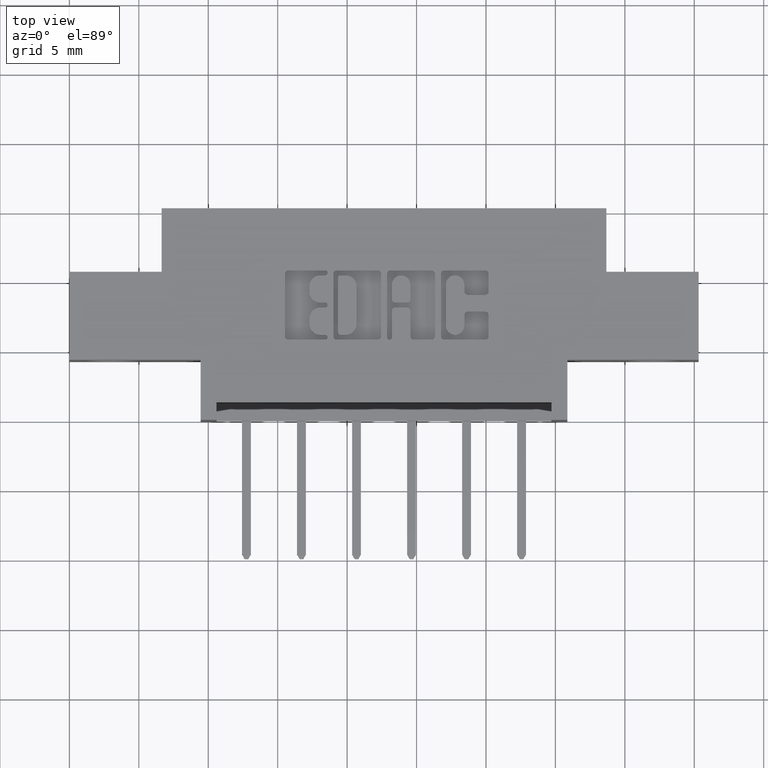
[diagram: clean part render]
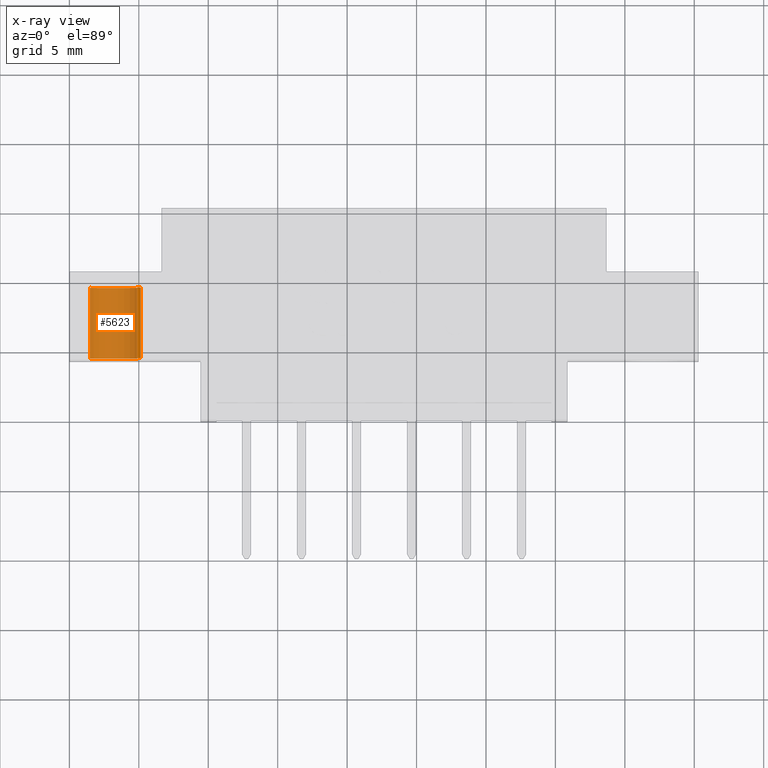
[diagram: x-ray — body ghosted, one internal face saturated and labeled with its STEP entity id]
A machine part, top view, then the same camera in x-ray: the body is ghosted and one INTERNAL B-rep face — a face not visible from any outside direction — is saturated and labeled: STEP entity #5623.
In plain terms, the highlighted cylindrical surface (edge-blend (fillet) strip) has radius 1.9685 mm, axis along (0, 1, -0).
Its self-contained STEP definition (entity closure, byte-faithful):
#121 = LINE ( 'NONE', #6131, #4124 ) ;
#178 = CARTESIAN_POINT ( 'NONE',  ( 0.0000000000000000000, 0.04000000000000000100, -0.07749999999999999900 ) ) ;
#248 = DIRECTION ( 'NONE',  ( 0.0000000000000000000, 0.0000000000000000000, -1.000000000000000000 ) ) ;
#264 = EDGE_CURVE ( 'NONE', #4021, #9103, #121, .T. ) ;
#356 = DIRECTION ( 'NONE',  ( -0.0000000000000000000, -1.000000000000000000, -0.0000000000000000000 ) ) ;
#744 = LINE ( 'NONE', #9338, #4515 ) ;
#1166 = DIRECTION ( 'NONE',  ( 0.0000000000000000000, 1.000000000000000000, 0.0000000000000000000 ) ) ;
#1182 = DIRECTION ( 'NONE',  ( 0.0000000000000000000, 0.0000000000000000000, 1.000000000000000000 ) ) ;
#2324 = EDGE_CURVE ( 'NONE', #9103, #4743, #5909, .T. ) ;
#2556 = CARTESIAN_POINT ( 'NONE',  ( 0.0000000000000000000, 0.2400000000000000500, 0.0000000000000000000 ) ) ;
#3466 = CARTESIAN_POINT ( 'NONE',  ( 0.0000000000000000000, 0.2400000000000000500, 0.0000000000000000000 ) ) ;
#3864 = FACE_OUTER_BOUND ( 'NONE', #4581, .T. ) ;
#4021 = VERTEX_POINT ( 'NONE', #4143 ) ;
#4097 = CIRCLE ( 'NONE', #5285, 0.07749999999999999900 ) ;
#4124 = VECTOR ( 'NONE', #7448, 39.37007874015748100 ) ;
#4143 = CARTESIAN_POINT ( 'NONE',  ( 9.491012693391986400E-018, 0.2400000000000000500, 0.07749999999999999900 ) ) ;
#4496 = ORIENTED_EDGE ( 'NONE', *, *, #6860, .F. ) ;
#4515 = VECTOR ( 'NONE', #356, 39.37007874015748100 ) ;
#4581 = EDGE_LOOP ( 'NONE', ( #7355, #7122, #6294, #4496 ) ) ;
#4743 = VERTEX_POINT ( 'NONE', #178 ) ;
#4774 = DIRECTION ( 'NONE',  ( -0.0000000000000000000, -1.000000000000000000, -0.0000000000000000000 ) ) ;
#5285 = AXIS2_PLACEMENT_3D ( 'NONE', #3466, #1166, #1182 ) ;
#5487 = VERTEX_POINT ( 'NONE', #6352 ) ;
#5529 = EDGE_CURVE ( 'NONE', #4021, #5487, #4097, .T. ) ;
#5623 = ADVANCED_FACE ( 'NONE', ( #3864 ), #7424, .T. ) ;
#5849 = CARTESIAN_POINT ( 'NONE',  ( 9.491012693391986400E-018, 0.04000000000000000100, 0.07749999999999999900 ) ) ;
#5909 = CIRCLE ( 'NONE', #7729, 0.07749999999999999900 ) ;
#6131 = CARTESIAN_POINT ( 'NONE',  ( 9.491012693391986400E-018, 0.2400000000000000500, 0.07749999999999999900 ) ) ;
#6294 = ORIENTED_EDGE ( 'NONE', *, *, #2324, .T. ) ;
#6295 = DIRECTION ( 'NONE',  ( 0.0000000000000000000, 1.000000000000000000, 0.0000000000000000000 ) ) ;
#6302 = DIRECTION ( 'NONE',  ( 0.0000000000000000000, 0.0000000000000000000, 1.000000000000000000 ) ) ;
#6352 = CARTESIAN_POINT ( 'NONE',  ( 0.0000000000000000000, 0.2400000000000000500, -0.07749999999999999900 ) ) ;
#6418 = CARTESIAN_POINT ( 'NONE',  ( 0.0000000000000000000, 0.04000000000000000100, 0.0000000000000000000 ) ) ;
#6860 = EDGE_CURVE ( 'NONE', #5487, #4743, #744, .T. ) ;
#7122 = ORIENTED_EDGE ( 'NONE', *, *, #264, .T. ) ;
#7355 = ORIENTED_EDGE ( 'NONE', *, *, #5529, .F. ) ;
#7424 = CYLINDRICAL_SURFACE ( 'NONE', #7815, 0.07749999999999999900 ) ;
#7448 = DIRECTION ( 'NONE',  ( -0.0000000000000000000, -1.000000000000000000, -0.0000000000000000000 ) ) ;
#7729 = AXIS2_PLACEMENT_3D ( 'NONE', #6418, #6295, #6302 ) ;
#7815 = AXIS2_PLACEMENT_3D ( 'NONE', #2556, #4774, #248 ) ;
#9103 = VERTEX_POINT ( 'NONE', #5849 ) ;
#9338 = CARTESIAN_POINT ( 'NONE',  ( 0.0000000000000000000, 0.2400000000000000500, -0.07749999999999999900 ) ) ;